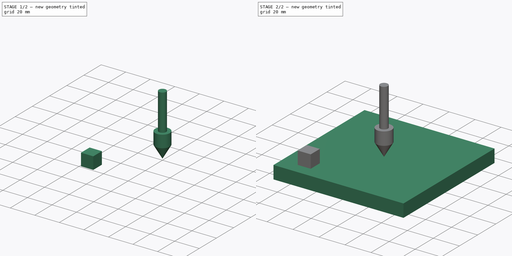
[diagram: build sequence overview — one tinted view per stage of 2, left to right]
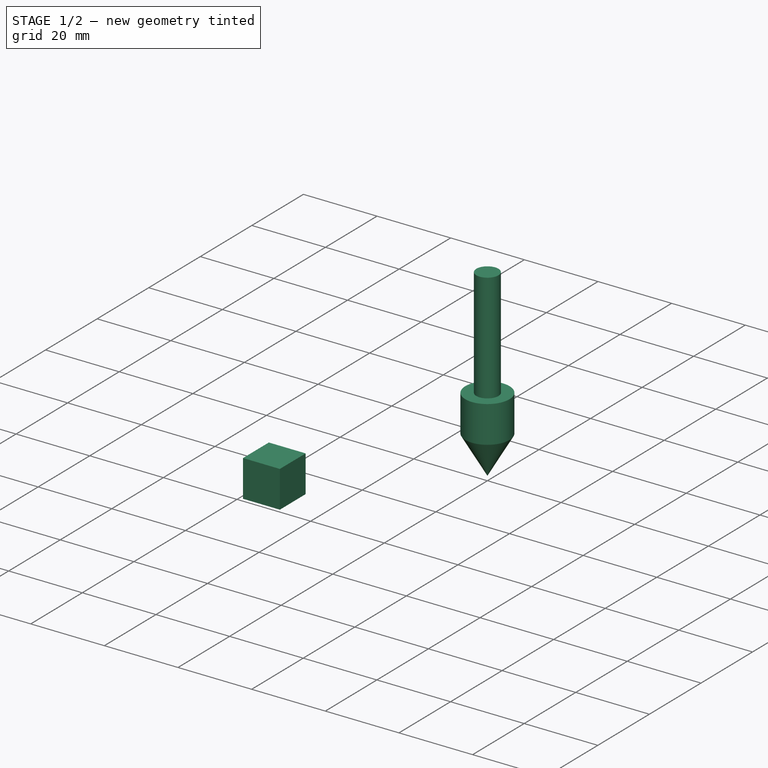
[diagram: stage 1 of 2 — iso view after this stage's code; geometry added in this stage tinted green]
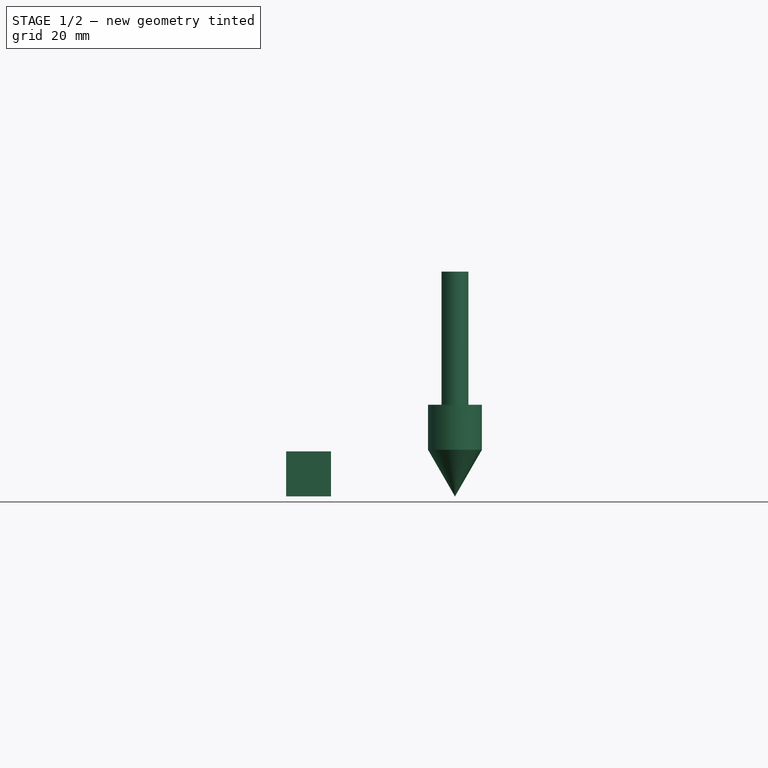
[diagram: stage 1 of 2 — front view after this stage's code; geometry added in this stage tinted green]
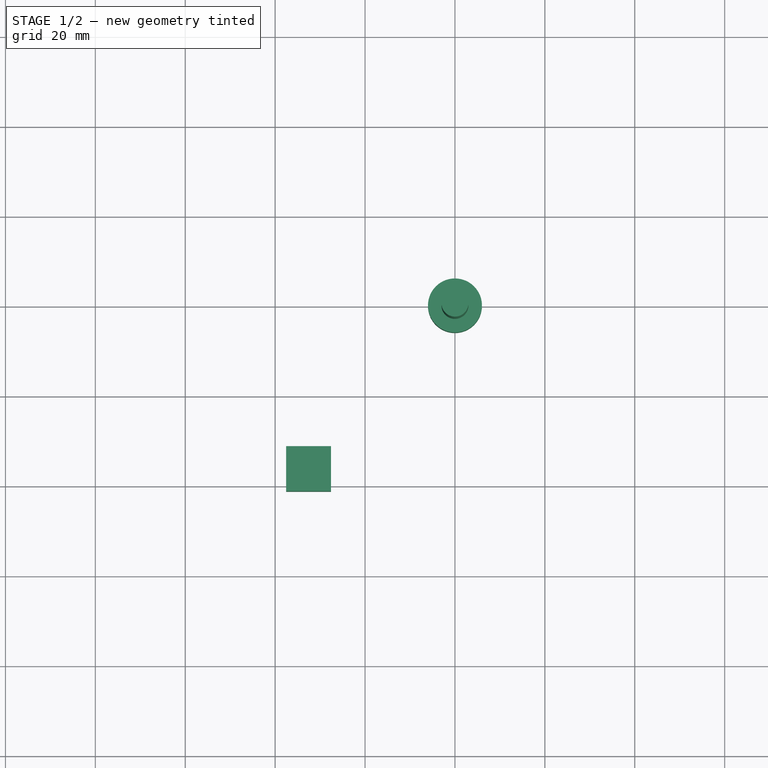
[diagram: stage 1 of 2 — top view after this stage's code; geometry added in this stage tinted green]
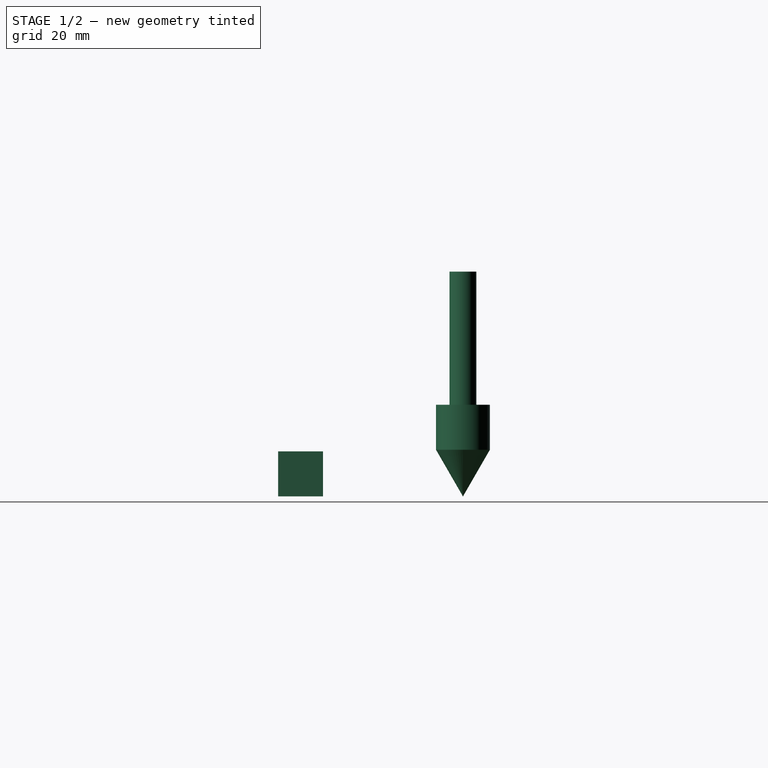
[diagram: stage 1 of 2 — right view after this stage's code; geometry added in this stage tinted green]
FCSTD DOCUMENT  (FreeCAD 0.20RUnknown)
Label: GMSCoaster
License: All rights reserved
LicenseURL: http://en.wikipedia.org/wiki/All_rights_reserved
objects: Part::Part2DObjectPython×36, Part::FeaturePython×5, Part::Compound×3, App::DocumentObjectGroup×3, Path::FeaturePython×3, Sketcher::SketchObject×2, PartDesign::Pad×1, PartDesign::Body×1, App::FeaturePython×1
note: 49 computed .brp shape members not serialized (recipe doc carries the construction recipe); baked Part::Feature solids carry a one-line shape summary decoded from their .brp

FEATURE [Part::Part2DObjectPython] ShapeString  label="G"  # Draft 2D object (typed FeaturePython)
  FontFile = <path>
  MakeFace = true
  Placement = pos=(-32.2,11,0) rot=(0,0,1;0.872665rad)
  Size = 10
  String = G
  Tracking = 0
FEATURE [Part::Part2DObjectPython] ShapeString001  label="L"  # Draft 2D object (typed FeaturePython)
  FontFile = <path>
  MakeFace = true
  Placement = pos=(-26.5,19.73,0) rot=(0,0,1;0.785398rad)
  Size = 10
  String = L
  Tracking = 0
FEATURE [Part::Part2DObjectPython] ShapeString002  label="A"  # Draft 2D object (typed FeaturePython)
  FontFile = <path>
  MakeFace = true
  Placement = pos=(-20.62,25.5,0) rot=(0,0,1;0.523599rad)
  Size = 10
  String = A
  Tracking = 0
FEATURE [Part::Part2DObjectPython] ShapeString003  label="D"  # Draft 2D object (typed FeaturePython)
  FontFile = <path>
  MakeFace = true
  Placement = pos=(-12.35,30,0) rot=(0,0,1;0.314159rad)
  Size = 10
  String = D
  Tracking = 0
FEATURE [Part::Part2DObjectPython] ShapeString004  label="S"  # Draft 2D object (typed FeaturePython)
  FontFile = <path>
  MakeFace = true
  Placement = pos=(-4,32.58,0) rot=(0,0,1;0rad)
  Size = 10
  String = S
  Tracking = 0
FEATURE [Sketcher::SketchObject] Sketch001
  FullyConstrained = true
  MapMode = 5
  Support = -> [Pad]
  sketch-geometry (1):
    g0: Circle CenterX=0 CenterY=0 CenterZ=0 NormalX=0 NormalY=0 NormalZ=1 AngleXU=0 Radius=32.5
  constraints (2):
    c: Coincident(g0,g-1)
    c: Diameter(g0) = 65
FEATURE [PartDesign::Body] Body
  Group = -> [Sketch,Pad,Sketch001]
  Origin = -> Origin
  Tip = -> Pad
FEATURE [Part::Part2DObjectPython] ShapeString005  label="T"  # Draft 2D object (typed FeaturePython)
  FontFile = <path>
  MakeFace = true
  Placement = pos=(4,32.69,0) rot=(0,0,1;-0.244346rad)
  Size = 10
  String = T
  Tracking = 0
FEATURE [Part::Part2DObjectPython] ShapeString006  label="O"  # Draft 2D object (typed FeaturePython)
  FontFile = <path>
  MakeFace = true
  Placement = pos=(10.78,31.29,0) rot=(0,0,1;-0.523599rad)
  Size = 10
  String = O
  Tracking = 0
FEATURE [Part::Part2DObjectPython] ShapeString007  label="N"  # Draft 2D object (typed FeaturePython)
  FontFile = <path>
  MakeFace = true
  Placement = pos=(19.3,27,0) rot=(0,0,1;-0.785398rad)
  Size = 10
  String = N
  Tracking = 0
FEATURE [Part::Part2DObjectPython] ShapeString008  label="E"  # Draft 2D object (typed FeaturePython)
  FontFile = <path>
  MakeFace = true
  Placement = pos=(25.72,20.49,0) rot=(0,0,1;-0.959931rad)
  Size = 10
  String = E
  Tracking = 0
FEATURE [Part::Part2DObjectPython] ShapeString009  label="M"  # Draft 2D object (typed FeaturePython)
  FontFile = <path>
  MakeFace = true
  Placement = pos=(-38.03,-16.7,0) rot=(0,0,1;-1.01229rad)
  Size = 10
  String = M
  Tracking = 0
FEATURE [Part::Part2DObjectPython] ShapeString010  label="ME"  # Draft 2D object (typed FeaturePython)
  FontFile = <path>
  MakeFace = true
  Placement = pos=(-31,-27.5,0) rot=(0,0,1;-0.767945rad)
  Size = 10
  String = E
  Tracking = 0
FEATURE [Part::Part2DObjectPython] ShapeString011  label="MN"  # Draft 2D object (typed FeaturePython)
  FontFile = <path>
  MakeFace = true
  Placement = pos=(-22.89,-34.97,0) rot=(0,0,1;-0.471239rad)
  Size = 10
  String = N
  Tracking = 0
FEATURE [Part::Part2DObjectPython] ShapeString012  label="M'"  # Draft 2D object (typed FeaturePython)
  FontFile = <path>
  MakeFace = true
  Placement = pos=(-12.2,-36,0) rot=(0,0,1;-0.349066rad)
  Size = 10
  String = '
  Tracking = 0
FEATURE [Part::Part2DObjectPython] ShapeString013  label="MS"  # Draft 2D object (typed FeaturePython)
  FontFile = <path>
  MakeFace = true
  Placement = pos=(-9.98,-40.25,0) rot=(0,0,1;-0.174533rad)
  Size = 10
  String = S
  Tracking = 0
FEATURE [Part::Part2DObjectPython] ShapeString014  label="SS"  # Draft 2D object (typed FeaturePython)
  FontFile = <path>
  MakeFace = true
  Placement = pos=(6.37,-41.2,0) rot=(0,0,1;0.261799rad)
  Size = 10
  String = S
  Tracking = 0
FEATURE [Part::Part2DObjectPython] ShapeString015  label="SH"  # Draft 2D object (typed FeaturePython)
  FontFile = <path>
  MakeFace = true
  Placement = pos=(17.67,-37,0) rot=(0,0,1;0.523599rad)
  Size = 10
  String = H
  Tracking = 0
FEATURE [Part::Part2DObjectPython] ShapeString016  label="SE"  # Draft 2D object (typed FeaturePython)
  FontFile = <path>
  MakeFace = true
  Placement = pos=(26,-32,0) rot=(0,0,1;0.750492rad)
  Size = 10
  String = E
  Tracking = 0
FEATURE [Part::Part2DObjectPython] ShapeString017  label="SD"  # Draft 2D object (typed FeaturePython)
  FontFile = <path>
  MakeFace = true
  Placement = pos=(33.3,-24.88,0) rot=(0,0,1;0.959931rad)
  Size = 10
  String = D
  Tracking = 0
FEATURE [Part::Compound] Compound  label="Gladstone"
  Links = -> [ShapeString008,ShapeString,ShapeString001,ShapeString002,ShapeString003,ShapeString004,ShapeString005,ShapeString006,ShapeString007]
FEATURE [Part::Compound] Compound004  label="SHED"
  Links = -> [ShapeString014,ShapeString015,ShapeString016,ShapeString017]
FEATURE [Part::Compound] Compound005  label="Men's"
  Links = -> [ShapeString009,ShapeString010,ShapeString011,ShapeString012,ShapeString013]
FEATURE [App::FeaturePython] SetupSheet  # Path/CAM operation (typed FeaturePython)
  ClearanceHeightExpression = OpStockZMax+SetupSheet.ClearanceHeightOffset
  ClearanceHeightOffset = 5
  CoolantMode = 0
  CoolantModes = None | Flood | Mist
  FinalDepthExpression = OpFinalDepth
  HorizRapid = 0
  SafeHeightExpression = OpStockZMax+SetupSheet.SafeHeightOffset
  SafeHeightOffset = 3
  StartDepthExpression = OpStartDepth
  StepDownExpression = OpToolDiameter
  VertRapid = 0
FEATURE [Part::Part2DObjectPython] Clone2D  label="Model-A"  # Draft 2D object (typed FeaturePython)
  Fuse = false
  Objects = -> [ShapeString002]
  PathResource = Model
  Placement = pos=(-20.62,25.5,0) rot=(0,0,1;0.523599rad)
  Scale = (1,1,1)
FEATURE [Part::Part2DObjectPython] Clone2D001  label="Model-D"  # Draft 2D object (typed FeaturePython)
  Fuse = false
  Objects = -> [ShapeString003]
  PathResource = Model
  Placement = pos=(-12.35,30,0) rot=(0,0,1;0.314159rad)
  Scale = (1,1,1)
FEATURE [Part::Part2DObjectPython] Clone2D002  label="Model-E"  # Draft 2D object (typed FeaturePython)
  Fuse = false
  Objects = -> [ShapeString008]
  PathResource = Model
  Placement = pos=(25.72,20.49,0) rot=(0,0,1;-0.959931rad)
  Scale = (1,1,1)
FEATURE [Part::Part2DObjectPython] Clone2D003  label="Model-G"  # Draft 2D object (typed FeaturePython)
  Fuse = false
  Objects = -> [ShapeString]
  PathResource = Model
  Placement = pos=(-32.2,11,0) rot=(0,0,1;0.872665rad)
  Scale = (1,1,1)
FEATURE [Part::FeaturePython] Clone  label="Model-Gladstone"  # Draft clone (typed FeaturePython)
  AttacherType = Attacher::AttachEngine3D
  Fuse = false
  Objects = -> [Compound]
  PathResource = Model
  Scale = (1,1,1)
FEATURE [Part::Part2DObjectPython] Clone2D004  label="Model-L"  # Draft 2D object (typed FeaturePython)
  Fuse = false
  Objects = -> [ShapeString001]
  PathResource = Model
  Placement = pos=(-26.5,19.73,0) rot=(0,0,1;0.785398rad)
  Scale = (1,1,1)
FEATURE [Part::Part2DObjectPython] Clone2D005  label="Model-M"  # Draft 2D object (typed FeaturePython)
  Fuse = false
  Objects = -> [ShapeString009]
  PathResource = Model
  Placement = pos=(-38.03,-16.7,0) rot=(0,0,1;-1.01229rad)
  Scale = (1,1,1)
FEATURE [Part::Part2DObjectPython] Clone2D006  label="Model-M'"  # Draft 2D object (typed FeaturePython)
  Fuse = false
  Objects = -> [ShapeString012]
  PathResource = Model
  Placement = pos=(-12.2,-36,0) rot=(0,0,1;-0.349066rad)
  Scale = (1,1,1)
FEATURE [Part::Part2DObjectPython] Clone2D007  label="Model-ME"  # Draft 2D object (typed FeaturePython)
  Fuse = false
  Objects = -> [ShapeString010]
  PathResource = Model
  Placement = pos=(-31,-27.5,0) rot=(0,0,1;-0.767945rad)
  Scale = (1,1,1)
FEATURE [Part::Part2DObjectPython] Clone2D008  label="Model-MN"  # Draft 2D object (typed FeaturePython)
  Fuse = false
  Objects = -> [ShapeString011]
  PathResource = Model
  Placement = pos=(-22.89,-34.97,0) rot=(0,0,1;-0.471239rad)
  Scale = (1,1,1)
FEATURE [Part::Part2DObjectPython] Clone2D009  label="Model-MS"  # Draft 2D object (typed FeaturePython)
  Fuse = false
  Objects = -> [ShapeString013]
  PathResource = Model
  Placement = pos=(-9.98,-40.25,0) rot=(0,0,1;-0.174533rad)
  Scale = (1,1,1)
FEATURE [Part::FeaturePython] Clone001  label="Model-Men's"  # Draft clone (typed FeaturePython)
  AttacherType = Attacher::AttachEngine3D
  Fuse = false
  Objects = -> [Compound005]
  PathResource = Model
  Scale = (1,1,1)
FEATURE [Part::Part2DObjectPython] Clone2D010  label="Model-N"  # Draft 2D object (typed FeaturePython)
  Fuse = false
  Objects = -> [ShapeString007]
  PathResource = Model
  Placement = pos=(19.3,27,0) rot=(0,0,1;-0.785398rad)
  Scale = (1,1,1)
FEATURE [Part::Part2DObjectPython] Clone2D011  label="Model-O"  # Draft 2D object (typed FeaturePython)
  Fuse = false
  Objects = -> [ShapeString006]
  PathResource = Model
  Placement = pos=(10.78,31.29,0) rot=(0,0,1;-0.523599rad)
  Scale = (1,1,1)
FEATURE [Part::Part2DObjectPython] Clone2D012  label="Model-S"  # Draft 2D object (typed FeaturePython)
  Fuse = false
  Objects = -> [ShapeString004]
  PathResource = Model
  Placement = pos=(-4,32.58,0) rot=(0,0,1;0rad)
  Scale = (1,1,1)
FEATURE [Part::Part2DObjectPython] Clone2D013  label="Model-SD"  # Draft 2D object (typed FeaturePython)
  Fuse = false
  Objects = -> [ShapeString017]
  PathResource = Model
  Placement = pos=(33.3,-24.88,0) rot=(0,0,1;0.959931rad)
  Scale = (1,1,1)
FEATURE [Part::Part2DObjectPython] Clone2D014  label="Model-SE"  # Draft 2D object (typed FeaturePython)
  Fuse = false
  Objects = -> [ShapeString016]
  PathResource = Model
  Placement = pos=(26,-32,0) rot=(0,0,1;0.750492rad)
  Scale = (1,1,1)
FEATURE [Part::Part2DObjectPython] Clone2D015  label="Model-SH"  # Draft 2D object (typed FeaturePython)
  Fuse = false
  Objects = -> [ShapeString015]
  PathResource = Model
  Placement = pos=(17.67,-37,0) rot=(0,0,1;0.523599rad)
  Scale = (1,1,1)
FEATURE [Part::FeaturePython] Clone002  label="Model-SHED"  # Draft clone (typed FeaturePython)
  AttacherType = Attacher::AttachEngine3D
  Fuse = false
  Objects = -> [Compound004]
  PathResource = Model
  Scale = (1,1,1)
FEATURE [Part::Part2DObjectPython] Clone2D016  label="Model-SS"  # Draft 2D object (typed FeaturePython)
  Fuse = false
  Objects = -> [ShapeString014]
  PathResource = Model
  Placement = pos=(6.37,-41.2,0) rot=(0,0,1;0.261799rad)
  Scale = (1,1,1)
FEATURE [Part::Part2DObjectPython] Clone2D017  label="Model-T"  # Draft 2D object (typed FeaturePython)
  Fuse = false
  Objects = -> [ShapeString005]
  PathResource = Model
  Placement = pos=(4,32.69,0) rot=(0,0,1;-0.244346rad)
  Scale = (1,1,1)
FEATURE [App::DocumentObjectGroup] Model
  Group = -> [Clone2D,Clone2D001,Clone2D002,Clone2D003,Clone,Clone2D004,Clone2D005,Clone2D006,Clone2D007,Clone2D008,Clone2D009,Clone001,Clone2D010,Clone2D011,Clone2D012,Clone2D013,Clone2D014,Clone2D015,Clone002,Clone2D016,Clone2D017]
FEATURE [Part::FeaturePython] Stock  # WARN: FeaturePython — macro-defined, semantics opaque (R4)
  Height = 10
  Length = 10
  Placement = pos=(-37.5665,-41.1234,0) rot=(0,0,1;0rad)
  StockType = CreateBox
  Width = 10
FEATURE [Part::FeaturePython] ToolBit001  label="60 Deg. V-Bit"  # Path/CAM toolbit (typed FeaturePython)
  BitPropertyNames = Chipload | CuttingEdgeAngle | CuttingEdgeHeight | Diameter | Flutes | Length | Material | ShankDiameter | TipDiameter
  BitShape = <path>
  Chipload = 0
  CuttingEdgeAngle = 60
  CuttingEdgeHeight = 10
  Diameter = 12
  File = <userpath>/Documents/Sherline/FreeCAD/Bit/60degree_Vbit.fctb
  Flutes = 2
  Length = 50
  Material = 0
  ShankDiameter = 6
  ShapeName = v_bit
  TipDiameter = 0.01
FEATURE [Path::FeaturePython] _0_Deg__V_Bit  label="60 Deg. V-Bit001"  # Path/CAM operation (typed FeaturePython)
  HorizFeed = 15
  HorizRapid = 0
  SpindleDir = 0
  SpindleSpeed = 10000
  Tool = -> ToolBit001
  ToolNumber = 2
  VertFeed = 5
  VertRapid = 0
  expr: HorizRapid = SetupSheet.HorizRapid
  expr: VertRapid = SetupSheet.VertRapid
FEATURE [App::DocumentObjectGroup] Tools
  Group = -> [_0_Deg__V_Bit]
FEATURE [Path::FeaturePython] Vcarve  # Path/CAM operation (typed FeaturePython)
  Active = true
  Base = -> [Clone002]
  BaseShapes = -> [Clone2D009,Clone2D002,Clone2D003,Clone2D004,Clone2D,Clone2D001,Clone2D012,Clone2D017,Clone2D011,Clone2D010,Clone2D016,Clone2D014,Clone2D013,Clone2D005,Clone2D007,Clone2D008,Clone2D006]
  ClearanceHeight = 5
  Colinear = 10
  CoolantMode = 0
  CycleTime = 00:02:42
  Discretize = 0.01
  FinalDepth = -1
  OpFinalDepth = 0
  OpStartDepth = 0
  OpStockZMax = 10
  OpStockZMin = 0
  OpToolDiameter = 12
  SafeHeight = 1.5
  StartDepth = 0
  Tolerance = 0.01
  ToolController = -> _0_Deg__V_Bit
  expr: ClearanceHeight = 5
  expr: FinalDepth = -1
  expr: SafeHeight = 1.5
  expr: StartDepth = OpStartDepth
FEATURE [App::DocumentObjectGroup] Operations
  Group = -> [Vcarve]
FEATURE [Path::FeaturePython] Job  # Path/CAM operation (typed FeaturePython)
  CycleTime = 00:02:42
  Fixtures = G54
  GeometryTolerance = 0.01
  JobType = 0
  LastPostProcessDate = 2023-03-31 10:21:42.300203
  LastPostProcessOutput = <userpath>/MensShed/CNCRouter/Fraser/GMSCoaster.ngc
  Model = -> Model
  Operations = -> Operations
  OrderOutputBy = 0
  PostProcessor = 2
  PostProcessorOutputFile = %D/%d.ngc
  SetupSheet = -> SetupSheet
  SplitOutput = false
  Stock = -> Stock
  Tools = -> Tools
note: 19 file-system paths scrubbed to <path> (originals preserved in the JSON sidecar)
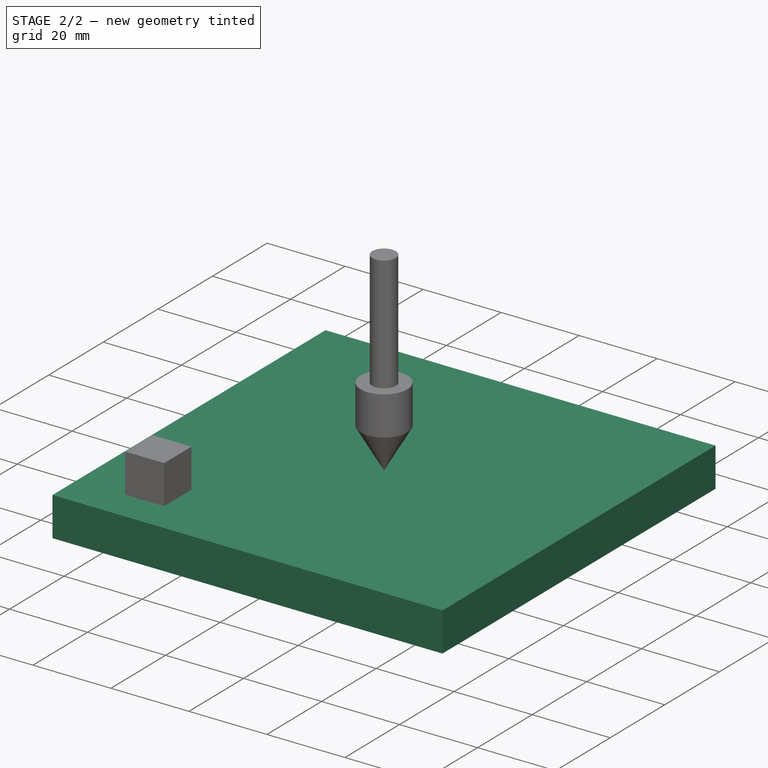
[diagram: stage 2 of 2 — iso view after this stage's code; geometry added in this stage tinted green]
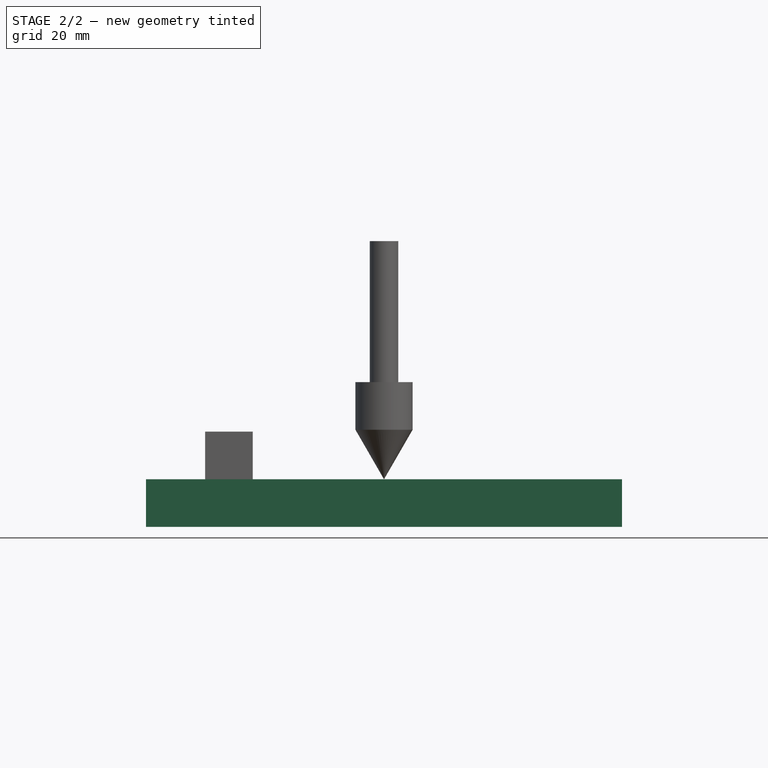
[diagram: stage 2 of 2 — front view after this stage's code; geometry added in this stage tinted green]
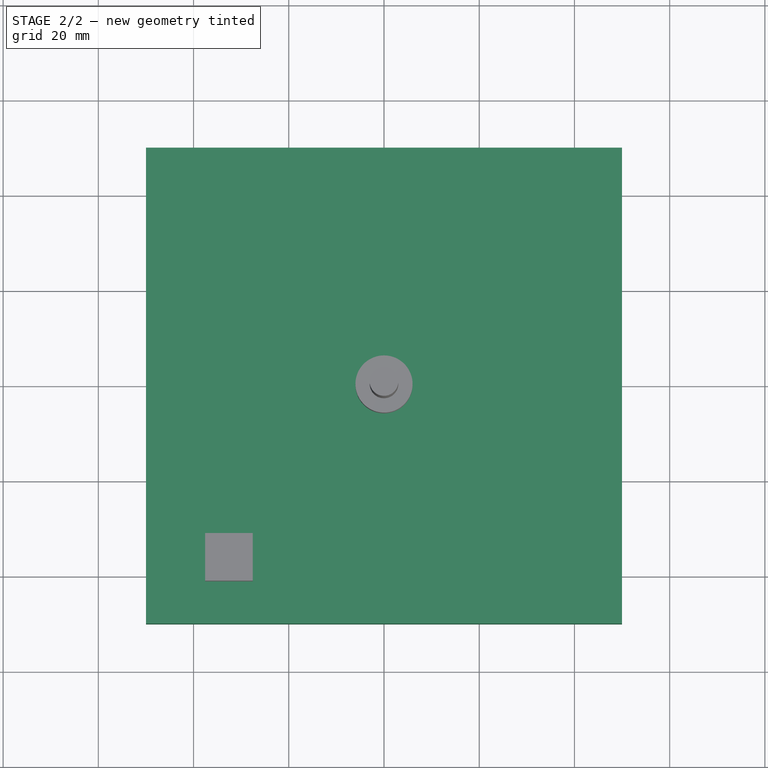
[diagram: stage 2 of 2 — top view after this stage's code; geometry added in this stage tinted green]
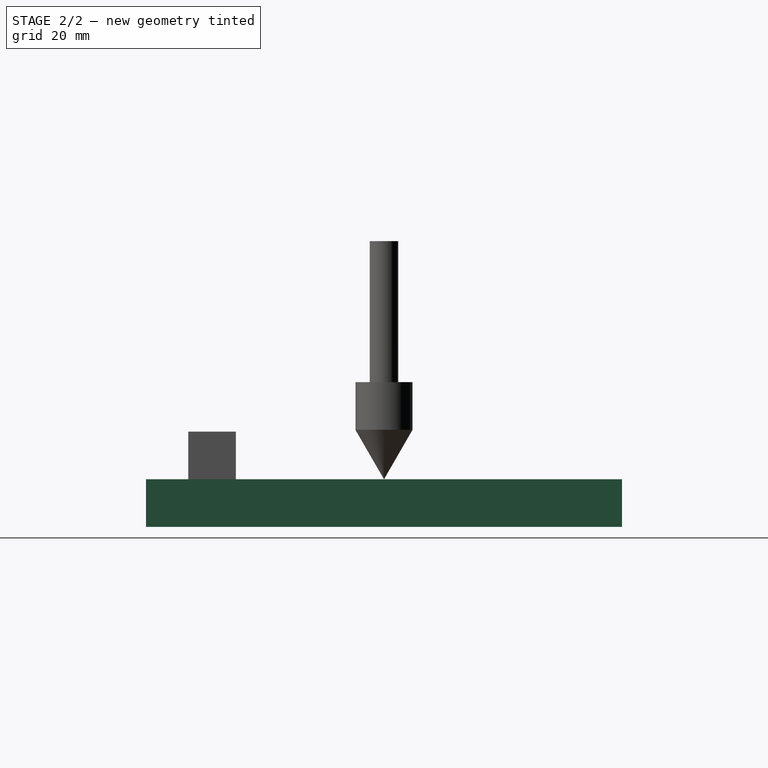
[diagram: stage 2 of 2 — right view after this stage's code; geometry added in this stage tinted green]
FEATURE [Sketcher::SketchObject] Sketch
  FullyConstrained = true
  MapMode = 5
  Support = -> [XY_Plane]
  sketch-geometry (5):
    g0: LineSegment StartX=-50 StartY=-50 StartZ=0 EndX=-50 EndY=50 EndZ=0
    g1: LineSegment StartX=-50 StartY=50 StartZ=0 EndX=50 EndY=50 EndZ=0
    g2: LineSegment StartX=50 StartY=50 StartZ=0 EndX=50 EndY=-50 EndZ=0
    g3: LineSegment StartX=50 StartY=-50 StartZ=0 EndX=-50 EndY=-50 EndZ=0
    g4: GeomPoint X=0 Y=0 Z=0
  constraints (12):
    c: Coincident(g0,g1)
    c: Coincident(g1,g2)
    c: Coincident(g2,g3)
    c: Coincident(g3,g0)
    c: Horizontal(g1)
    c: Horizontal(g3)
    c: Vertical(g0)
    c: Vertical(g2)
    c: Symmetric(g1,g0,g4)
    c: Coincident(g4,g-1)
    c: DistanceX(g1,g1) = 100
    c: DistanceY(g2,g2) = 100
FEATURE [PartDesign::Pad] Pad
  Direction = (0,0,1)
  Length = 10
  Length2 = 10
  Profile = -> Sketch
  ReferenceAxis = -> Sketch [N_Axis]
  Reversed = true
  Type = 0
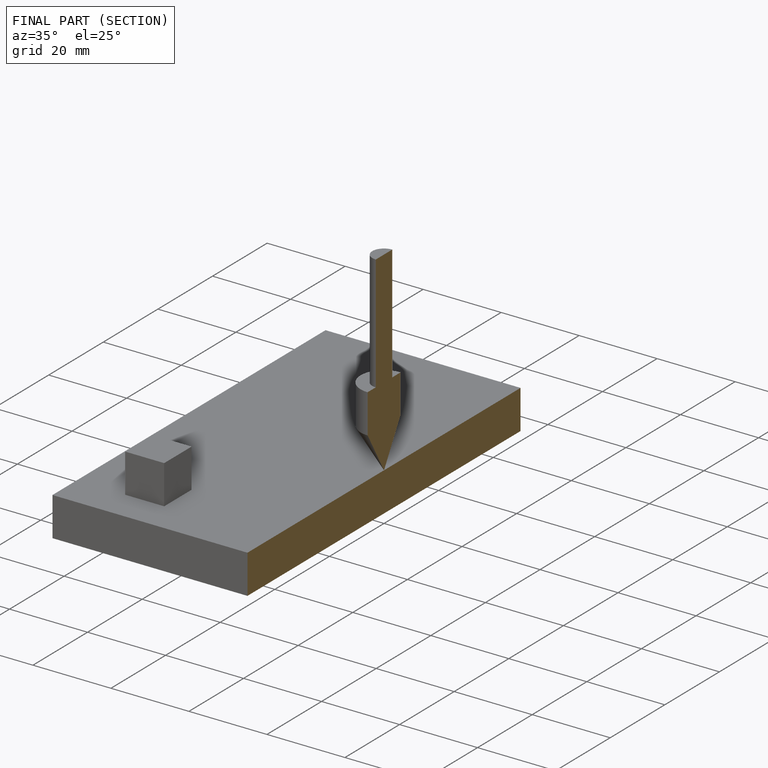
[diagram: finished part — half-section view (interior)]
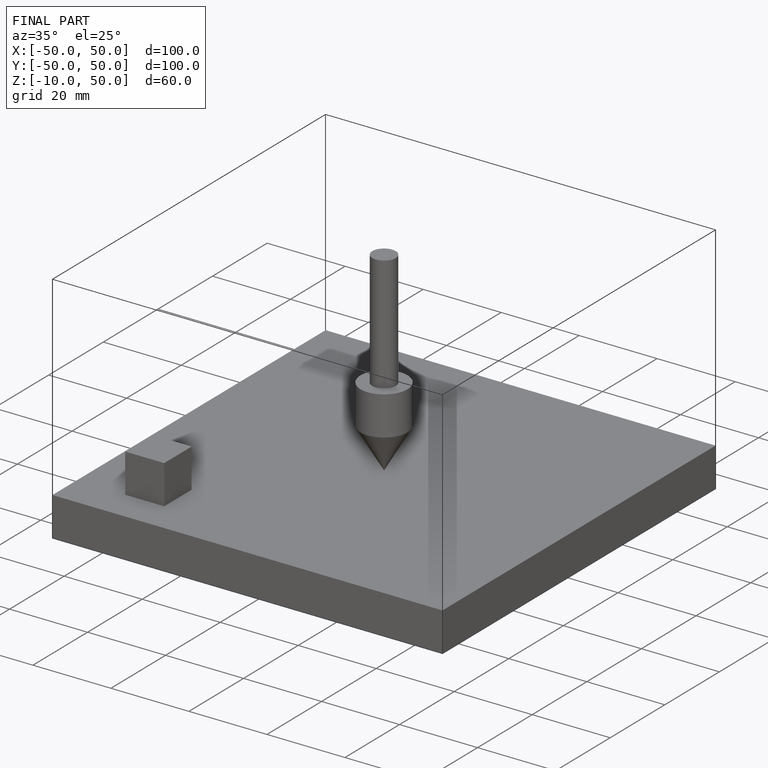
[diagram: finished part — iso view with bounding-box wireframe]
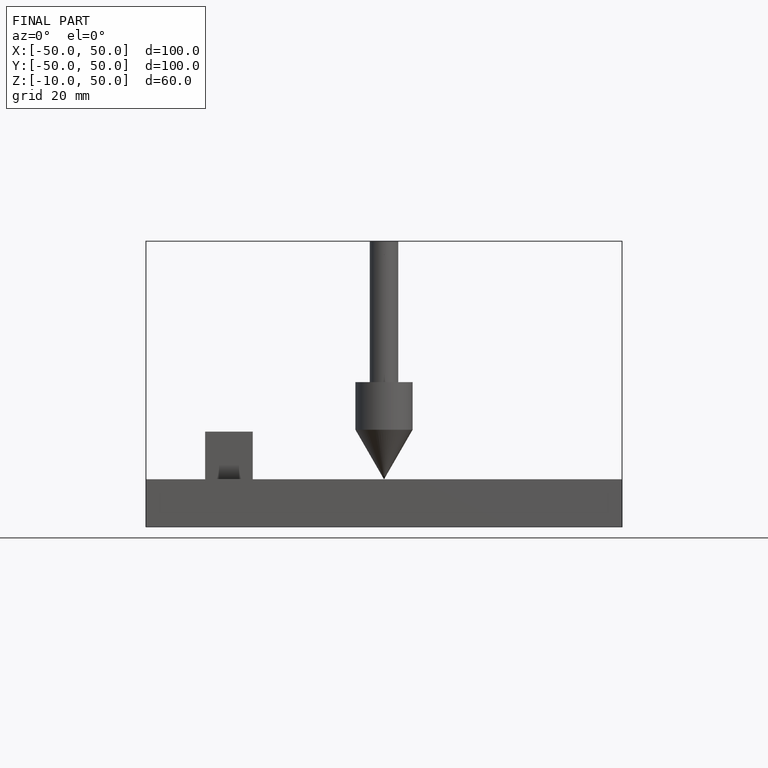
[diagram: finished part — front view with bounding-box wireframe]
